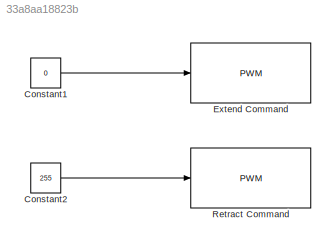
MODEL slx_33a8aa18823b
KIND model
BLOCK [Constant] Constant1
  Value = 0
BLOCK [Constant] Constant2
  Value = 255
BLOCK [Reference] Extend Command  REF=arduinolib/PWM
  Ports = [1]
  SourceBlock = arduinolib/PWM
  SourceType = Arduino PWM
  pinNumber = 5
BLOCK [Reference] Retract Command  REF=arduinolib/PWM
  Ports = [1]
  SourceBlock = arduinolib/PWM
  SourceType = Arduino PWM
  pinNumber = 7
LINE Constant1:1 -> Extend Command:1
LINE Constant2:1 -> Retract Command:1
